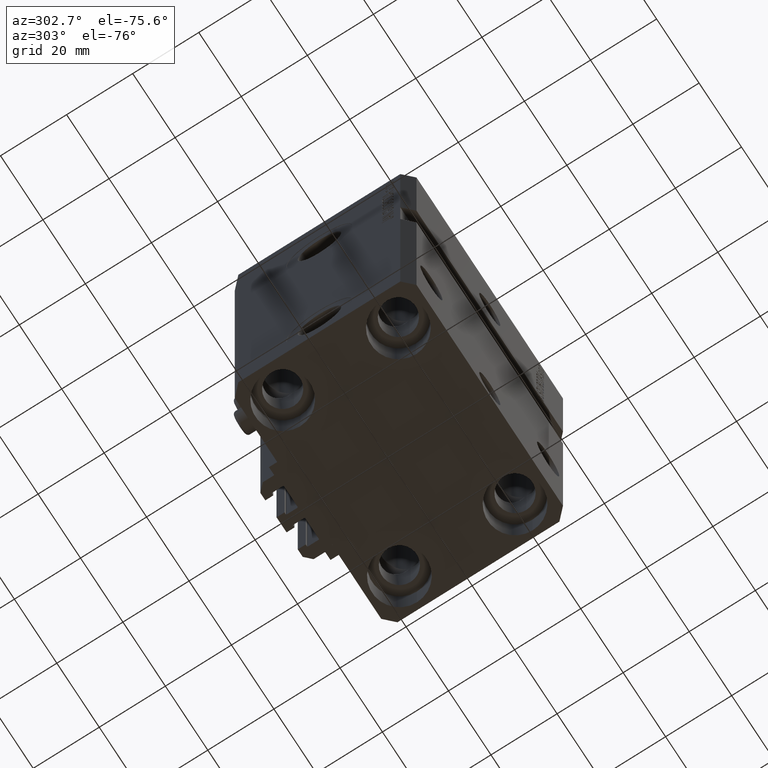
[diagram: clean part render]
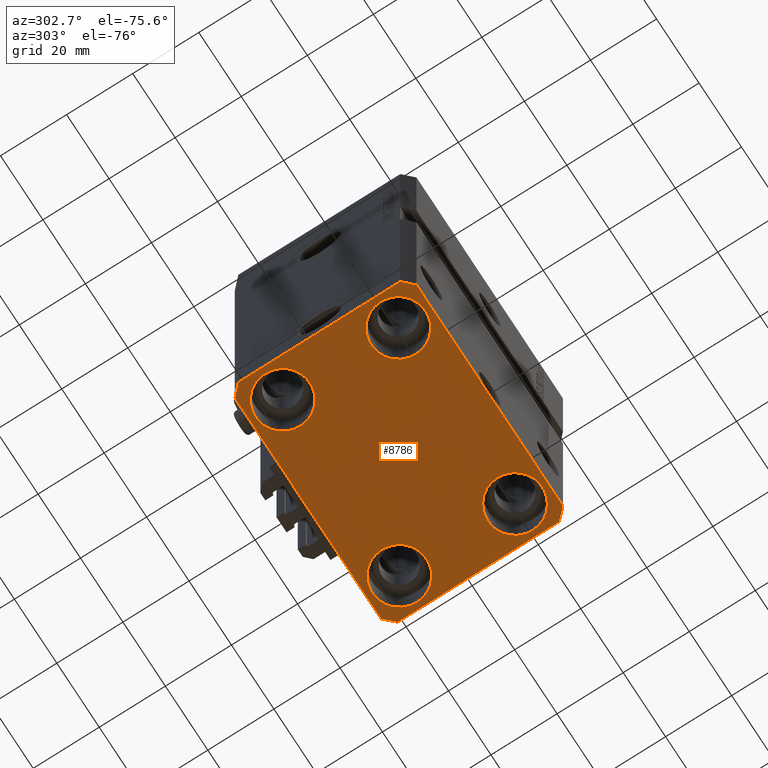
[diagram: same view with one face highlighted and labeled with its STEP entity id]
A machine part, auxiliary view. The second image highlights one B-rep face of the part: STEP entity #8786.
In plain terms, the highlighted planar face has unit normal (0, 0, 1).
Its self-contained STEP definition (entity closure, byte-faithful):
#342 = AXIS2_PLACEMENT_3D ( 'NONE', #24707, #39944, #36206 ) ;
#537 = EDGE_CURVE ( 'NONE', #8266, #26759, #23742, .T. ) ;
#2476 = VECTOR ( 'NONE', #25053, 1000.000000000000000 ) ;
#2747 = VECTOR ( 'NONE', #5517, 1000.000000000000000 ) ;
#3534 = FACE_BOUND ( 'NONE', #48626, .T. ) ;
#4207 = CARTESIAN_POINT ( 'NONE',  ( -27.50000000000000355, -17.50000000000000000, -110.0000000000000000 ) ) ;
#4676 = VERTEX_POINT ( 'NONE', #13509 ) ;
#5012 = DIRECTION ( 'NONE',  ( 1.000000000000000000, 0.000000000000000000, 0.000000000000000000 ) ) ;
#5517 = DIRECTION ( 'NONE',  ( 0.7071067811865483499, -0.7071067811865466846, 0.000000000000000000 ) ) ;
#5531 = EDGE_CURVE ( 'NONE', #31111, #24795, #19955, .T. ) ;
#6288 = CARTESIAN_POINT ( 'NONE',  ( 34.50000000000056843, 27.50000000000000000, -110.0000000000000000 ) ) ;
#6471 = VERTEX_POINT ( 'NONE', #21129 ) ;
#6559 = CARTESIAN_POINT ( 'NONE',  ( 0.000000000000000000, 0.000000000000000000, -110.0000000000000000 ) ) ;
#7158 = AXIS2_PLACEMENT_3D ( 'NONE', #6559, #49294, #14287 ) ;
#8266 = VERTEX_POINT ( 'NONE', #28166 ) ;
#8761 = AXIS2_PLACEMENT_3D ( 'NONE', #23878, #39116, #40590 ) ;
#8786 = ADVANCED_FACE ( 'NONE', ( #3534, #30073, #33090, #48319, #14040 ), #26313, .F. ) ;
#8795 = VERTEX_POINT ( 'NONE', #11025 ) ;
#9221 = VERTEX_POINT ( 'NONE', #19666 ) ;
#9888 = CARTESIAN_POINT ( 'NONE',  ( -37.49999999999999289, 24.50000000000000000, -110.0000000000000000 ) ) ;
#10161 = AXIS2_PLACEMENT_3D ( 'NONE', #20811, #27820, #43055 ) ;
#11025 = CARTESIAN_POINT ( 'NONE',  ( 35.75000000000000711, -17.50000000000000000, -110.0000000000000000 ) ) ;
#11633 = CARTESIAN_POINT ( 'NONE',  ( 37.49999999999999289, -24.50000000000000000, -110.0000000000000000 ) ) ;
#11740 = DIRECTION ( 'NONE',  ( 1.076236605503979380E-14, 1.000000000000000000, 0.000000000000000000 ) ) ;
#11780 = EDGE_CURVE ( 'NONE', #19379, #9221, #30777, .T. ) ;
#11986 = CIRCLE ( 'NONE', #16798, 8.250000000000000000 ) ;
#12190 = CARTESIAN_POINT ( 'NONE',  ( 27.50000000000000355, -17.50000000000000000, -110.0000000000000000 ) ) ;
#12306 = CIRCLE ( 'NONE', #342, 8.250000000000000000 ) ;
#12822 = VERTEX_POINT ( 'NONE', #22328 ) ;
#12905 = ORIENTED_EDGE ( 'NONE', *, *, #39198, .T. ) ;
#12941 = DIRECTION ( 'NONE',  ( -0.000000000000000000, -0.000000000000000000, 1.000000000000000000 ) ) ;
#13001 = DIRECTION ( 'NONE',  ( -0.7071067811865356934, 0.7071067811865594521, 0.000000000000000000 ) ) ;
#13023 = EDGE_CURVE ( 'NONE', #12822, #23273, #13269, .T. ) ;
#13210 = AXIS2_PLACEMENT_3D ( 'NONE', #35537, #31040, #5012 ) ;
#13269 = LINE ( 'NONE', #29047, #2476 ) ;
#13509 = CARTESIAN_POINT ( 'NONE',  ( 34.50000000000056843, 27.50000000000000000, -110.0000000000000000 ) ) ;
#14040 = FACE_OUTER_BOUND ( 'NONE', #25178, .T. ) ;
#14218 = CARTESIAN_POINT ( 'NONE',  ( -19.25000000000000355, -17.50000000000000000, -110.0000000000000000 ) ) ;
#14287 = DIRECTION ( 'NONE',  ( 1.000000000000000000, 0.000000000000000000, -0.000000000000000000 ) ) ;
#14830 = CARTESIAN_POINT ( 'NONE',  ( 37.50000000000051870, 24.49999999999995381, -110.0000000000000000 ) ) ;
#15503 = LINE ( 'NONE', #30791, #26619 ) ;
#16798 = AXIS2_PLACEMENT_3D ( 'NONE', #4207, #49477, #34000 ) ;
#17993 = VECTOR ( 'NONE', #13001, 1000.000000000000114 ) ;
#18145 = LINE ( 'NONE', #44172, #48415 ) ;
#18801 = LINE ( 'NONE', #45565, #49295 ) ;
#19379 = VERTEX_POINT ( 'NONE', #24945 ) ;
#19666 = CARTESIAN_POINT ( 'NONE',  ( 34.49999999999999289, -27.49999999999999645, -110.0000000000000000 ) ) ;
#19955 = CIRCLE ( 'NONE', #8761, 8.249999999999992895 ) ;
#20093 = CARTESIAN_POINT ( 'NONE',  ( -37.49999999999999289, -24.50000000000000000, -110.0000000000000000 ) ) ;
#20366 = CIRCLE ( 'NONE', #25979, 8.250000000000000000 ) ;
#20776 = CARTESIAN_POINT ( 'NONE',  ( 37.50000000000051870, 24.49999999999995381, -110.0000000000000000 ) ) ;
#20791 = EDGE_LOOP ( 'NONE', ( #12905, #36969 ) ) ;
#20811 = CARTESIAN_POINT ( 'NONE',  ( -27.50000000000000355, -17.50000000000000000, -110.0000000000000000 ) ) ;
#21129 = CARTESIAN_POINT ( 'NONE',  ( -35.75000000000000711, 17.50000000000000000, -110.0000000000000000 ) ) ;
#21372 = ORIENTED_EDGE ( 'NONE', *, *, #34718, .T. ) ;
#21466 = EDGE_CURVE ( 'NONE', #24795, #31111, #39069, .T. ) ;
#21473 = ORIENTED_EDGE ( 'NONE', *, *, #40209, .T. ) ;
#21518 = AXIS2_PLACEMENT_3D ( 'NONE', #23035, #23535, #38775 ) ;
#21904 = AXIS2_PLACEMENT_3D ( 'NONE', #23607, #31116, #27858 ) ;
#22326 = DIRECTION ( 'NONE',  ( 0.000000000000000000, -1.000000000000000000, 0.000000000000000000 ) ) ;
#22328 = CARTESIAN_POINT ( 'NONE',  ( -34.49999999999999289, 27.50000000000000000, -110.0000000000000000 ) ) ;
#22510 = VERTEX_POINT ( 'NONE', #46782 ) ;
#23035 = CARTESIAN_POINT ( 'NONE',  ( 27.49999999999999645, 17.50000000000001066, -110.0000000000000000 ) ) ;
#23057 = ORIENTED_EDGE ( 'NONE', *, *, #21466, .T. ) ;
#23273 = VERTEX_POINT ( 'NONE', #9888 ) ;
#23535 = DIRECTION ( 'NONE',  ( -0.000000000000000000, -0.000000000000000000, 1.000000000000000000 ) ) ;
#23607 = CARTESIAN_POINT ( 'NONE',  ( 27.50000000000000355, -17.50000000000000000, -110.0000000000000000 ) ) ;
#23742 = CIRCLE ( 'NONE', #10161, 8.250000000000000000 ) ;
#23878 = CARTESIAN_POINT ( 'NONE',  ( 27.49999999999999645, 17.50000000000001066, -110.0000000000000000 ) ) ;
#24118 = EDGE_LOOP ( 'NONE', ( #25669, #23057 ) ) ;
#24414 = CIRCLE ( 'NONE', #13210, 8.250000000000000000 ) ;
#24544 = CARTESIAN_POINT ( 'NONE',  ( -37.49999999999999289, -24.50000000000000000, -110.0000000000000000 ) ) ;
#24707 = CARTESIAN_POINT ( 'NONE',  ( -27.50000000000000355, 17.50000000000000000, -110.0000000000000000 ) ) ;
#24795 = VERTEX_POINT ( 'NONE', #41966 ) ;
#24945 = CARTESIAN_POINT ( 'NONE',  ( -34.49999999999998579, -27.49999999999999645, -110.0000000000000000 ) ) ;
#25053 = DIRECTION ( 'NONE',  ( -0.7071067811865471286, -0.7071067811865479058, 0.000000000000000000 ) ) ;
#25178 = EDGE_LOOP ( 'NONE', ( #33644, #43743, #38483, #27017, #32947, #33149, #26392, #34517 ) ) ;
#25669 = ORIENTED_EDGE ( 'NONE', *, *, #5531, .T. ) ;
#25916 = VERTEX_POINT ( 'NONE', #11633 ) ;
#25979 = AXIS2_PLACEMENT_3D ( 'NONE', #12190, #12941, #27471 ) ;
#26313 = PLANE ( 'NONE',  #7158 ) ;
#26392 = ORIENTED_EDGE ( 'NONE', *, *, #49046, .F. ) ;
#26619 = VECTOR ( 'NONE', #11740, 1000.000000000000000 ) ;
#26759 = VERTEX_POINT ( 'NONE', #14218 ) ;
#26886 = EDGE_CURVE ( 'NONE', #26759, #8266, #11986, .T. ) ;
#27011 = DIRECTION ( 'NONE',  ( 1.000000000000000000, 0.000000000000000000, 0.000000000000000000 ) ) ;
#27017 = ORIENTED_EDGE ( 'NONE', *, *, #43311, .F. ) ;
#27471 = DIRECTION ( 'NONE',  ( 1.000000000000000000, 0.000000000000000000, 0.000000000000000000 ) ) ;
#27820 = DIRECTION ( 'NONE',  ( -0.000000000000000000, -0.000000000000000000, 1.000000000000000000 ) ) ;
#27858 = DIRECTION ( 'NONE',  ( 1.000000000000000000, 0.000000000000000000, 0.000000000000000000 ) ) ;
#28166 = CARTESIAN_POINT ( 'NONE',  ( -35.75000000000000711, -17.50000000000000000, -110.0000000000000000 ) ) ;
#29047 = CARTESIAN_POINT ( 'NONE',  ( -34.49999999999999289, 27.50000000000000000, -110.0000000000000000 ) ) ;
#29218 = EDGE_LOOP ( 'NONE', ( #21372, #21473 ) ) ;
#30073 = FACE_BOUND ( 'NONE', #29218, .T. ) ;
#30777 = LINE ( 'NONE', #45998, #47184 ) ;
#30791 = CARTESIAN_POINT ( 'NONE',  ( 37.49999999999999289, -24.50000000000000000, -110.0000000000000000 ) ) ;
#30886 = EDGE_CURVE ( 'NONE', #4676, #12822, #31844, .T. ) ;
#31040 = DIRECTION ( 'NONE',  ( -0.000000000000000000, -0.000000000000000000, 1.000000000000000000 ) ) ;
#31111 = VERTEX_POINT ( 'NONE', #44792 ) ;
#31116 = DIRECTION ( 'NONE',  ( -0.000000000000000000, -0.000000000000000000, 1.000000000000000000 ) ) ;
#31844 = LINE ( 'NONE', #6288, #45709 ) ;
#32947 = ORIENTED_EDGE ( 'NONE', *, *, #11780, .F. ) ;
#33090 = FACE_BOUND ( 'NONE', #24118, .T. ) ;
#33149 = ORIENTED_EDGE ( 'NONE', *, *, #36645, .F. ) ;
#33155 = EDGE_CURVE ( 'NONE', #25916, #43977, #15503, .T. ) ;
#33644 = ORIENTED_EDGE ( 'NONE', *, *, #30886, .F. ) ;
#34000 = DIRECTION ( 'NONE',  ( 1.000000000000000000, 0.000000000000000000, 0.000000000000000000 ) ) ;
#34517 = ORIENTED_EDGE ( 'NONE', *, *, #13023, .F. ) ;
#34718 = EDGE_CURVE ( 'NONE', #41582, #8795, #36293, .T. ) ;
#35537 = CARTESIAN_POINT ( 'NONE',  ( -27.50000000000000355, 17.50000000000000000, -110.0000000000000000 ) ) ;
#36206 = DIRECTION ( 'NONE',  ( 1.000000000000000000, 0.000000000000000000, 0.000000000000000000 ) ) ;
#36293 = CIRCLE ( 'NONE', #21904, 8.250000000000000000 ) ;
#36433 = DIRECTION ( 'NONE',  ( 0.7071067811865474617, 0.7071067811865474617, 0.000000000000000000 ) ) ;
#36645 = EDGE_CURVE ( 'NONE', #44936, #19379, #43529, .T. ) ;
#36969 = ORIENTED_EDGE ( 'NONE', *, *, #45327, .T. ) ;
#38483 = ORIENTED_EDGE ( 'NONE', *, *, #33155, .F. ) ;
#38775 = DIRECTION ( 'NONE',  ( 1.000000000000000000, 0.000000000000000000, 0.000000000000000000 ) ) ;
#39069 = CIRCLE ( 'NONE', #21518, 8.249999999999992895 ) ;
#39116 = DIRECTION ( 'NONE',  ( -0.000000000000000000, -0.000000000000000000, 1.000000000000000000 ) ) ;
#39198 = EDGE_CURVE ( 'NONE', #6471, #22510, #12306, .T. ) ;
#39944 = DIRECTION ( 'NONE',  ( -0.000000000000000000, -0.000000000000000000, 1.000000000000000000 ) ) ;
#40209 = EDGE_CURVE ( 'NONE', #8795, #41582, #20366, .T. ) ;
#40590 = DIRECTION ( 'NONE',  ( 1.000000000000000000, 0.000000000000000000, 0.000000000000000000 ) ) ;
#41582 = VERTEX_POINT ( 'NONE', #46540 ) ;
#41966 = CARTESIAN_POINT ( 'NONE',  ( 35.74999999999999289, 17.50000000000001066, -110.0000000000000000 ) ) ;
#43055 = DIRECTION ( 'NONE',  ( 1.000000000000000000, 0.000000000000000000, 0.000000000000000000 ) ) ;
#43311 = EDGE_CURVE ( 'NONE', #9221, #25916, #18145, .T. ) ;
#43529 = LINE ( 'NONE', #24544, #2747 ) ;
#43743 = ORIENTED_EDGE ( 'NONE', *, *, #45458, .F. ) ;
#43977 = VERTEX_POINT ( 'NONE', #14830 ) ;
#44172 = CARTESIAN_POINT ( 'NONE',  ( 34.49999999999999289, -27.49999999999999645, -110.0000000000000000 ) ) ;
#44792 = CARTESIAN_POINT ( 'NONE',  ( 19.25000000000000000, 17.50000000000001066, -110.0000000000000000 ) ) ;
#44936 = VERTEX_POINT ( 'NONE', #20093 ) ;
#45327 = EDGE_CURVE ( 'NONE', #22510, #6471, #24414, .T. ) ;
#45458 = EDGE_CURVE ( 'NONE', #43977, #4676, #47270, .T. ) ;
#45565 = CARTESIAN_POINT ( 'NONE',  ( -37.49999999999999289, 24.50000000000000000, -110.0000000000000000 ) ) ;
#45709 = VECTOR ( 'NONE', #48057, 1000.000000000000000 ) ;
#45998 = CARTESIAN_POINT ( 'NONE',  ( -34.49999999999998579, -27.49999999999999645, -110.0000000000000000 ) ) ;
#46049 = ORIENTED_EDGE ( 'NONE', *, *, #26886, .T. ) ;
#46540 = CARTESIAN_POINT ( 'NONE',  ( 19.25000000000000000, -17.50000000000000000, -110.0000000000000000 ) ) ;
#46782 = CARTESIAN_POINT ( 'NONE',  ( -19.25000000000000355, 17.50000000000000000, -110.0000000000000000 ) ) ;
#47184 = VECTOR ( 'NONE', #27011, 1000.000000000000000 ) ;
#47270 = LINE ( 'NONE', #20776, #17993 ) ;
#48057 = DIRECTION ( 'NONE',  ( -1.000000000000000000, 0.000000000000000000, 0.000000000000000000 ) ) ;
#48319 = FACE_BOUND ( 'NONE', #20791, .T. ) ;
#48415 = VECTOR ( 'NONE', #36433, 1000.000000000000114 ) ;
#48626 = EDGE_LOOP ( 'NONE', ( #49323, #46049 ) ) ;
#49046 = EDGE_CURVE ( 'NONE', #23273, #44936, #18801, .T. ) ;
#49294 = DIRECTION ( 'NONE',  ( 0.000000000000000000, 0.000000000000000000, 1.000000000000000000 ) ) ;
#49295 = VECTOR ( 'NONE', #22326, 1000.000000000000000 ) ;
#49323 = ORIENTED_EDGE ( 'NONE', *, *, #537, .T. ) ;
#49477 = DIRECTION ( 'NONE',  ( -0.000000000000000000, -0.000000000000000000, 1.000000000000000000 ) ) ;